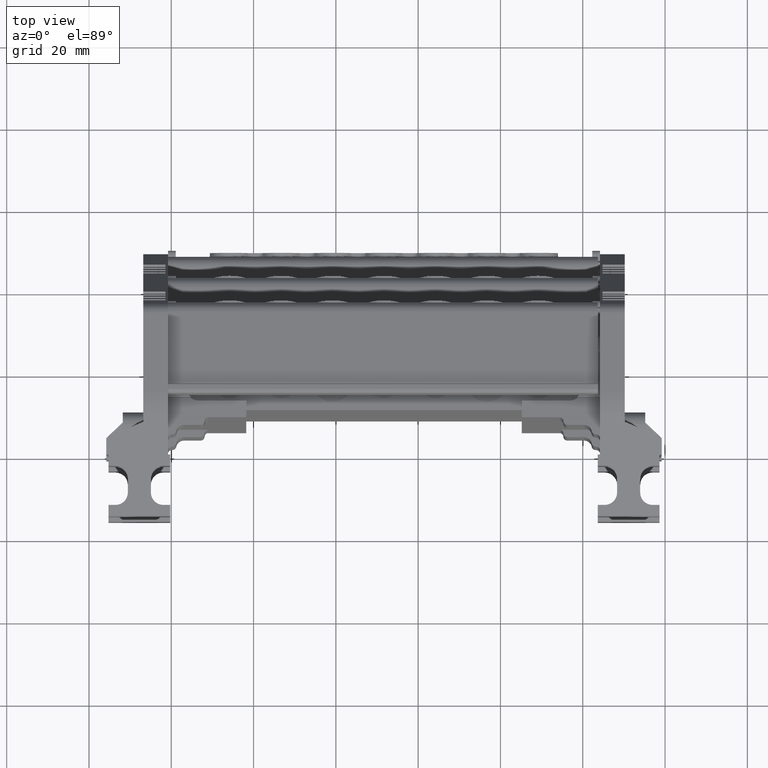
[diagram: clean part render]
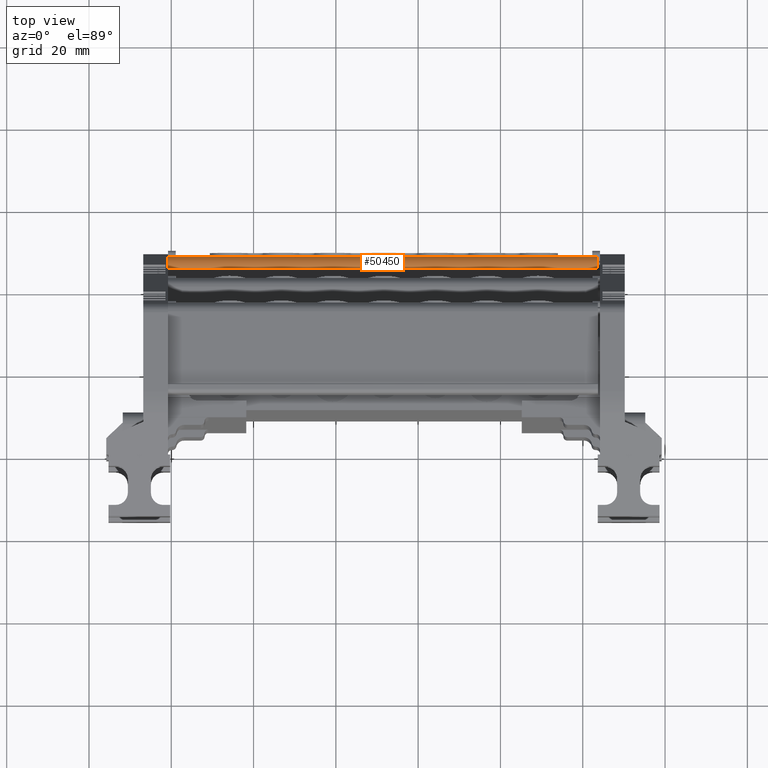
[diagram: same view with one face highlighted and labeled with its STEP entity id]
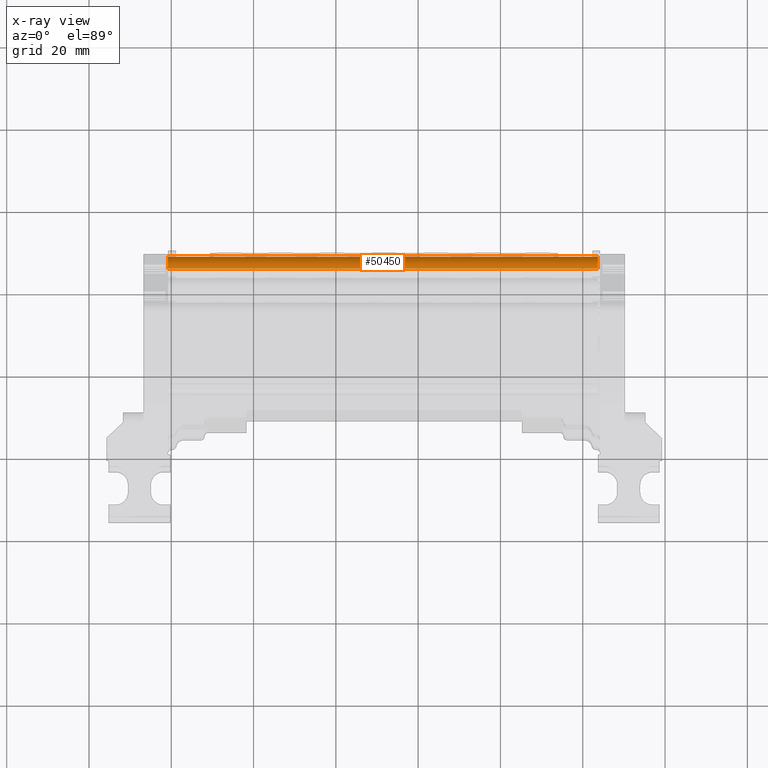
[diagram: x-ray of the same camera — body ghosted, the highlighted face saturated]
A machine part, top view. The second image highlights one B-rep face of the part: STEP entity #50450.
The next image is the same camera in x-ray: the body ghosted, the highlighted face saturated — about 0% of this face is hidden behind the body in this view.
In plain terms, the highlighted cylindrical surface (edge-blend (fillet) strip) has radius 3 mm, axis along (-1, 0, -0).
Its self-contained STEP definition (entity closure, byte-faithful):
#3790 = EDGE_LOOP ( 'NONE', ( #88473, #88455, #79637, #88391 ) ) ;
#4005 = VECTOR ( 'NONE', #17077, 1000.000000000000000 ) ;
#4087 = VECTOR ( 'NONE', #17142, 1000.000000000000000 ) ;
#16456 = CARTESIAN_POINT ( 'NONE',  ( -60.79994303252780700, 285.8807329948741700, -27.87106006626527900 ) ) ;
#16470 = DIRECTION ( 'NONE',  ( -9.251858538542962800E-015, -1.000000000000000000, 0.0000000000000000000 ) ) ;
#16518 = DIRECTION ( 'NONE',  ( 1.000000000000000000, -9.816221875545171200E-015, 4.619041198555339300E-015 ) ) ;
#17070 = LINE ( 'NONE', #17128, #4005 ) ;
#17077 = DIRECTION ( 'NONE',  ( -1.000000000000000000, 9.816221875545171200E-015, -4.619041198555339300E-015 ) ) ;
#17088 = LINE ( 'NONE', #17159, #4087 ) ;
#17128 = CARTESIAN_POINT ( 'NONE',  ( 43.67005696747217100, 288.8807329948731400, -27.87106006626505900 ) ) ;
#17142 = DIRECTION ( 'NONE',  ( -1.000000000000000000, -7.760860803244665700E-017, -4.446349789011834400E-015 ) ) ;
#17159 = CARTESIAN_POINT ( 'NONE',  ( 43.67005696747207100, 285.9330883823538400, -24.87151694882145100 ) ) ;
#32457 = AXIS2_PLACEMENT_3D ( 'NONE', #60223, #60225, #60215 ) ;
#45274 = CARTESIAN_POINT ( 'NONE',  ( -60.79994303252777900, 288.8807329948741700, -27.87106006626541400 ) ) ;
#45304 = CARTESIAN_POINT ( 'NONE',  ( -60.79994303252782100, 285.9330883823543000, -24.87151694882192700 ) ) ;
#50450 = ADVANCED_FACE ( 'NONE', ( #60220 ), #60221, .T. ) ;
#55279 = EDGE_CURVE ( 'NONE', #83219, #83233, #82657, .T. ) ;
#55489 = EDGE_CURVE ( 'NONE', #88674, #83219, #17070, .T. ) ;
#55529 = EDGE_CURVE ( 'NONE', #88695, #83233, #17088, .T. ) ;
#60215 = DIRECTION ( 'NONE',  ( -9.251858538542962800E-015, -1.000000000000000000, 0.0000000000000000000 ) ) ;
#60220 = FACE_OUTER_BOUND ( 'NONE', #3790, .T. ) ;
#60221 = CYLINDRICAL_SURFACE ( 'NONE', #32457, 3.000000000000002700 ) ;
#60223 = CARTESIAN_POINT ( 'NONE',  ( 43.67005696747214200, 285.8807329948731400, -27.87106006626480000 ) ) ;
#60225 = DIRECTION ( 'NONE',  ( -1.000000000000000000, 9.816221875545171200E-015, -4.619041198555339300E-015 ) ) ;
#72650 = EDGE_CURVE ( 'NONE', #88695, #88674, #94401, .T. ) ;
#79637 = ORIENTED_EDGE ( 'NONE', *, *, #72650, .T. ) ;
#82657 = CIRCLE ( 'NONE', #82676, 3.000000000000002700 ) ;
#82676 = AXIS2_PLACEMENT_3D ( 'NONE', #16456, #16518, #16470 ) ;
#83219 = VERTEX_POINT ( 'NONE', #45274 ) ;
#83233 = VERTEX_POINT ( 'NONE', #45304 ) ;
#88391 = ORIENTED_EDGE ( 'NONE', *, *, #55489, .T. ) ;
#88455 = ORIENTED_EDGE ( 'NONE', *, *, #55529, .F. ) ;
#88473 = ORIENTED_EDGE ( 'NONE', *, *, #55279, .T. ) ;
#88674 = VERTEX_POINT ( 'NONE', #99609 ) ;
#88695 = VERTEX_POINT ( 'NONE', #99557 ) ;
#92832 = DIRECTION ( 'NONE',  ( -1.000000000000000000, 9.816221875545171200E-015, -4.619041198555339300E-015 ) ) ;
#92886 = CARTESIAN_POINT ( 'NONE',  ( 43.67005696747213500, 285.8807329948731400, -27.87106006626480000 ) ) ;
#92891 = DIRECTION ( 'NONE',  ( -9.251858538542962800E-015, -1.000000000000000000, 0.0000000000000000000 ) ) ;
#94401 = CIRCLE ( 'NONE', #94406, 3.000000000000002700 ) ;
#94406 = AXIS2_PLACEMENT_3D ( 'NONE', #92886, #92832, #92891 ) ;
#99557 = CARTESIAN_POINT ( 'NONE',  ( 43.67005696747202800, 285.9330883823538400, -24.87151694882145100 ) ) ;
#99609 = CARTESIAN_POINT ( 'NONE',  ( 43.67005696747216300, 288.8807329948731400, -27.87106006626498100 ) ) ;